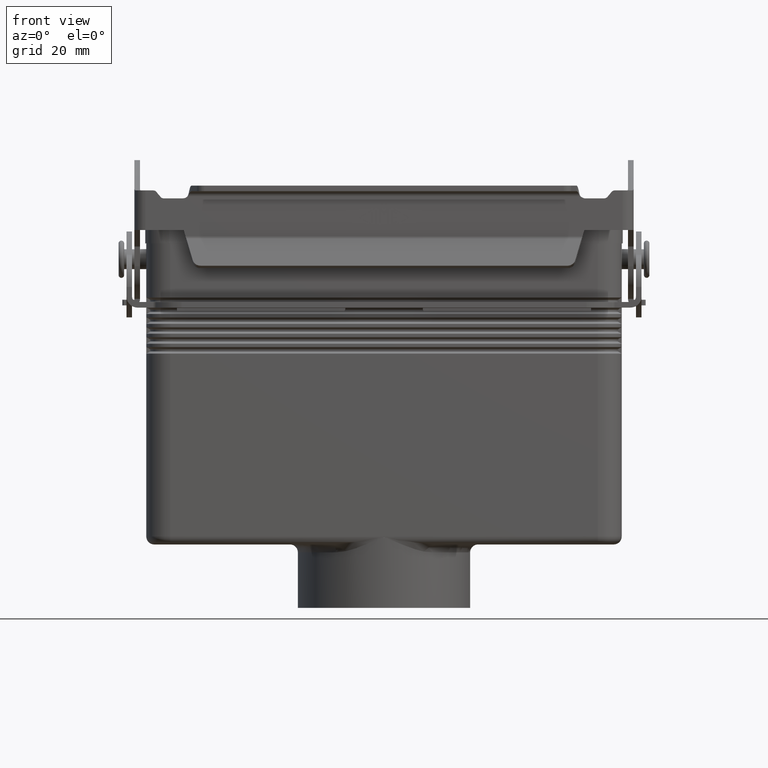
[diagram: clean part render]
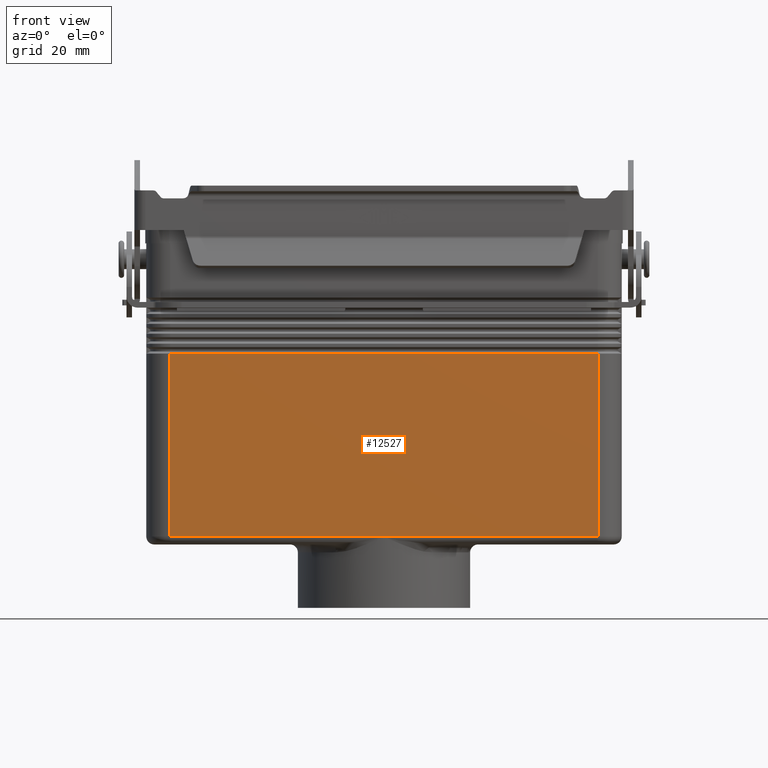
[diagram: same view with one face highlighted and labeled with its STEP entity id]
A machine part, front view. The second image highlights one B-rep face of the part: STEP entity #12527.
In plain terms, the highlighted planar face has unit normal (0, -1, 0).
Its self-contained STEP definition (entity closure, byte-faithful):
#9396=CARTESIAN_POINT('',(54.0,-21.750000000000004,-23.827350269189623));
#9397=VERTEX_POINT('',#9396);
#9429=CARTESIAN_POINT('',(-54.0,-21.750000000000007,-23.827350269189630));
#9430=VERTEX_POINT('',#9429);
#9431=CARTESIAN_POINT('',(54.0,-21.750000000000004,-23.827350269189623));
#9432=DIRECTION('',(-1.0,0.0,0.0));
#9433=VECTOR('',#9432,108.0);
#9434=LINE('',#9431,#9433);
#9435=EDGE_CURVE('',#9397,#9430,#9434,.T.);
#12386=CARTESIAN_POINT('',(53.999999999999993,-21.750000000000007,-69.999999999999986));
#12387=VERTEX_POINT('',#12386);
#12388=CARTESIAN_POINT('',(54.0,-21.750000000000004,-23.827350269189623));
#12389=DIRECTION('',(0.0,0.0,-1.0));
#12390=VECTOR('',#12389,46.172649730810363);
#12391=LINE('',#12388,#12390);
#12392=EDGE_CURVE('',#9397,#12387,#12391,.T.);
#12504=CARTESIAN_POINT('',(-53.999999999999993,-21.750000000000007,9.0));
#12505=DIRECTION('',(0.0,-1.0,0.0));
#12506=DIRECTION('',(0.0,0.0,-1.0));
#12507=AXIS2_PLACEMENT_3D('',#12504,#12505,#12506);
#12508=PLANE('',#12507);
#12509=ORIENTED_EDGE('',*,*,#9435,.T.);
#12510=CARTESIAN_POINT('',(-53.999999999999993,-21.750000000000007,-69.999999999999986));
#12511=VERTEX_POINT('',#12510);
#12512=CARTESIAN_POINT('',(-54.0,-21.750000000000007,-23.827350269189630));
#12513=DIRECTION('',(0.0,0.0,-1.0));
#12514=VECTOR('',#12513,46.172649730810356);
#12515=LINE('',#12512,#12514);
#12516=EDGE_CURVE('',#9430,#12511,#12515,.T.);
#12517=ORIENTED_EDGE('',*,*,#12516,.T.);
#12518=CARTESIAN_POINT('',(53.999999999999993,-21.750000000000007,-69.999999999999986));
#12519=DIRECTION('',(-1.0,0.0,0.0));
#12520=VECTOR('',#12519,107.999999999999990);
#12521=LINE('',#12518,#12520);
#12522=EDGE_CURVE('',#12387,#12511,#12521,.T.);
#12523=ORIENTED_EDGE('',*,*,#12522,.F.);
#12524=ORIENTED_EDGE('',*,*,#12392,.F.);
#12525=EDGE_LOOP('',(#12509,#12517,#12523,#12524));
#12526=FACE_OUTER_BOUND('',#12525,.T.);
#12527=ADVANCED_FACE('',(#12526),#12508,.T.);